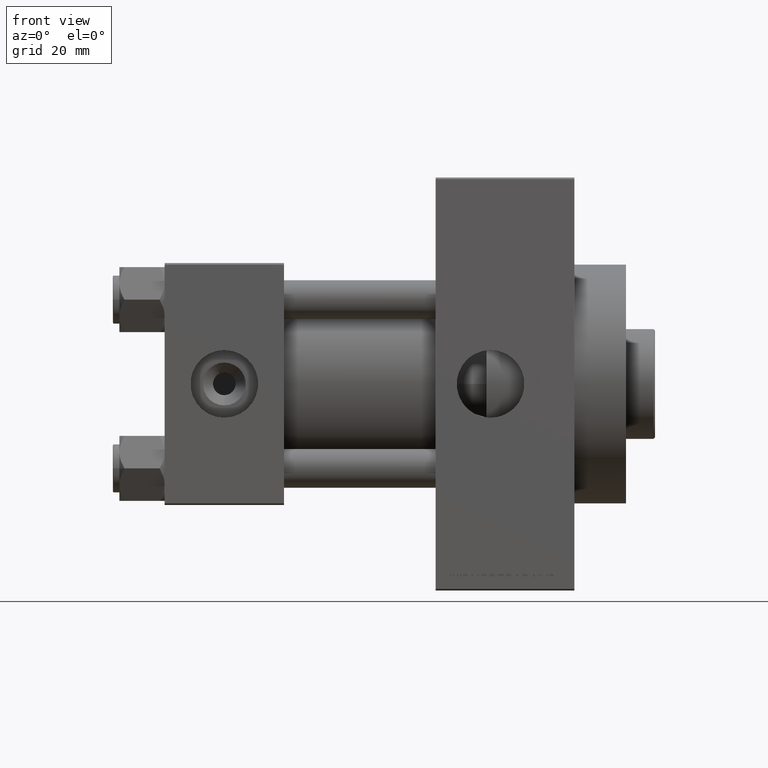
[diagram: clean part render]
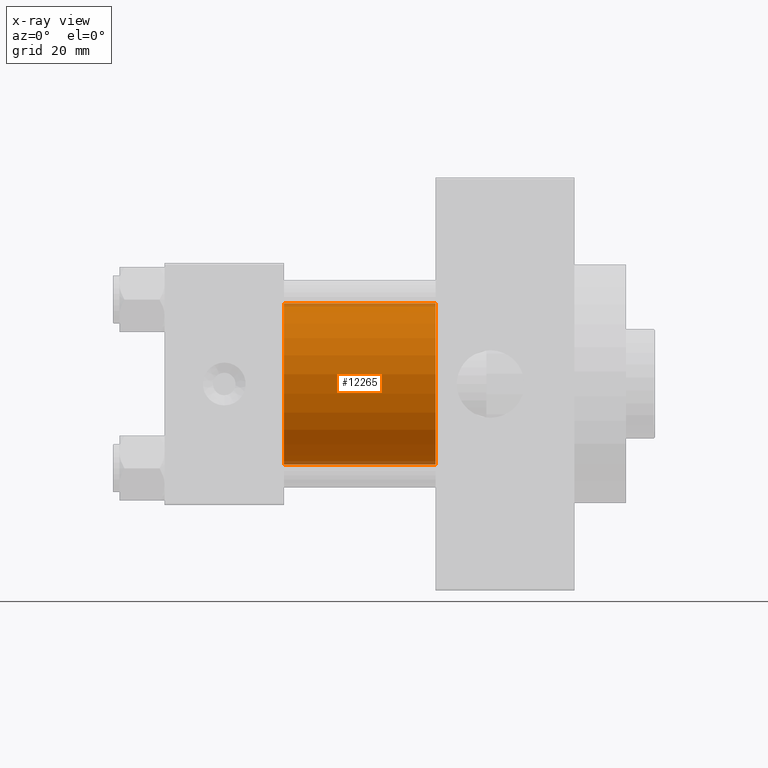
[diagram: x-ray — body ghosted, one internal face saturated and labeled with its STEP entity id]
A machine part, front view, then the same camera in x-ray: the body is ghosted and one INTERNAL B-rep face — a face not visible from any outside direction — is saturated and labeled: STEP entity #12265.
In plain terms, the highlighted cylindrical surface (partial cylindrical patch) has radius 25 mm, axis along (-1, -0, -0).
Its self-contained STEP definition (entity closure, byte-faithful):
#331 = CARTESIAN_POINT ( 'NONE',  ( 83.99999999999998579, -2.602085213965210642E-15, 25.00000000000000000 ) ) ;
#1138 = EDGE_CURVE ( 'NONE', #20472, #22700, #6424, .T. ) ;
#2170 = CARTESIAN_POINT ( 'NONE',  ( 83.99999999999998579, 4.595317839031724996E-16, -25.00000000000000000 ) ) ;
#3565 = CARTESIAN_POINT ( 'NONE',  ( 37.00000000000000000, -2.602085213965210642E-15, 0.000000000000000000 ) ) ;
#4986 = DIRECTION ( 'NONE',  ( -1.000000000000000000, -0.000000000000000000, -0.000000000000000000 ) ) ;
#6424 = CIRCLE ( 'NONE', #44627, 25.00000000000000000 ) ;
#8443 = VECTOR ( 'NONE', #29438, 1000.000000000000000 ) ;
#8968 = LINE ( 'NONE', #2170, #21929 ) ;
#11288 = CARTESIAN_POINT ( 'NONE',  ( 37.00000000000000000, 4.595317839031724996E-16, -25.00000000000000000 ) ) ;
#12265 = ADVANCED_FACE ( 'NONE', ( #32131 ), #12925, .F. ) ;
#12891 = CARTESIAN_POINT ( 'NONE',  ( 83.99999999999998579, 4.595317839031724996E-16, -25.00000000000000000 ) ) ;
#12925 = CYLINDRICAL_SURFACE ( 'NONE', #31348, 25.00000000000000000 ) ;
#16377 = EDGE_CURVE ( 'NONE', #48646, #22700, #8968, .T. ) ;
#17479 = CARTESIAN_POINT ( 'NONE',  ( 83.99999999999998579, -2.602085213965210642E-15, 0.000000000000000000 ) ) ;
#18598 = EDGE_CURVE ( 'NONE', #35182, #20472, #32923, .T. ) ;
#19562 = CARTESIAN_POINT ( 'NONE',  ( 37.00000000000000000, -2.602085213965210642E-15, 25.00000000000000000 ) ) ;
#20433 = CARTESIAN_POINT ( 'NONE',  ( 83.99999999999998579, -2.602085213965210642E-15, 0.000000000000000000 ) ) ;
#20472 = VERTEX_POINT ( 'NONE', #19562 ) ;
#21203 = ORIENTED_EDGE ( 'NONE', *, *, #30104, .T. ) ;
#21871 = EDGE_LOOP ( 'NONE', ( #21203, #48225, #47356, #49197 ) ) ;
#21929 = VECTOR ( 'NONE', #4986, 1000.000000000000000 ) ;
#22700 = VERTEX_POINT ( 'NONE', #11288 ) ;
#25943 = DIRECTION ( 'NONE',  ( 1.000000000000000000, 0.000000000000000000, 0.000000000000000000 ) ) ;
#28155 = DIRECTION ( 'NONE',  ( -1.000000000000000000, -0.000000000000000000, -0.000000000000000000 ) ) ;
#29438 = DIRECTION ( 'NONE',  ( -1.000000000000000000, -0.000000000000000000, -0.000000000000000000 ) ) ;
#30104 = EDGE_CURVE ( 'NONE', #35182, #48646, #42949, .T. ) ;
#30738 = DIRECTION ( 'NONE',  ( 1.000000000000000000, 0.000000000000000000, 0.000000000000000000 ) ) ;
#31348 = AXIS2_PLACEMENT_3D ( 'NONE', #20433, #28155, #46825 ) ;
#32131 = FACE_OUTER_BOUND ( 'NONE', #21871, .T. ) ;
#32923 = LINE ( 'NONE', #41374, #8443 ) ;
#35182 = VERTEX_POINT ( 'NONE', #331 ) ;
#38199 = AXIS2_PLACEMENT_3D ( 'NONE', #17479, #25943, #48599 ) ;
#38205 = DIRECTION ( 'NONE',  ( 0.000000000000000000, 0.000000000000000000, -1.000000000000000000 ) ) ;
#41374 = CARTESIAN_POINT ( 'NONE',  ( 83.99999999999998579, -2.602085213965210642E-15, 25.00000000000000000 ) ) ;
#42949 = CIRCLE ( 'NONE', #38199, 25.00000000000000000 ) ;
#44627 = AXIS2_PLACEMENT_3D ( 'NONE', #3565, #30738, #38205 ) ;
#46825 = DIRECTION ( 'NONE',  ( 0.000000000000000000, 0.000000000000000000, 1.000000000000000000 ) ) ;
#47356 = ORIENTED_EDGE ( 'NONE', *, *, #1138, .F. ) ;
#48225 = ORIENTED_EDGE ( 'NONE', *, *, #16377, .T. ) ;
#48599 = DIRECTION ( 'NONE',  ( 0.000000000000000000, 0.000000000000000000, -1.000000000000000000 ) ) ;
#48646 = VERTEX_POINT ( 'NONE', #12891 ) ;
#49197 = ORIENTED_EDGE ( 'NONE', *, *, #18598, .F. ) ;